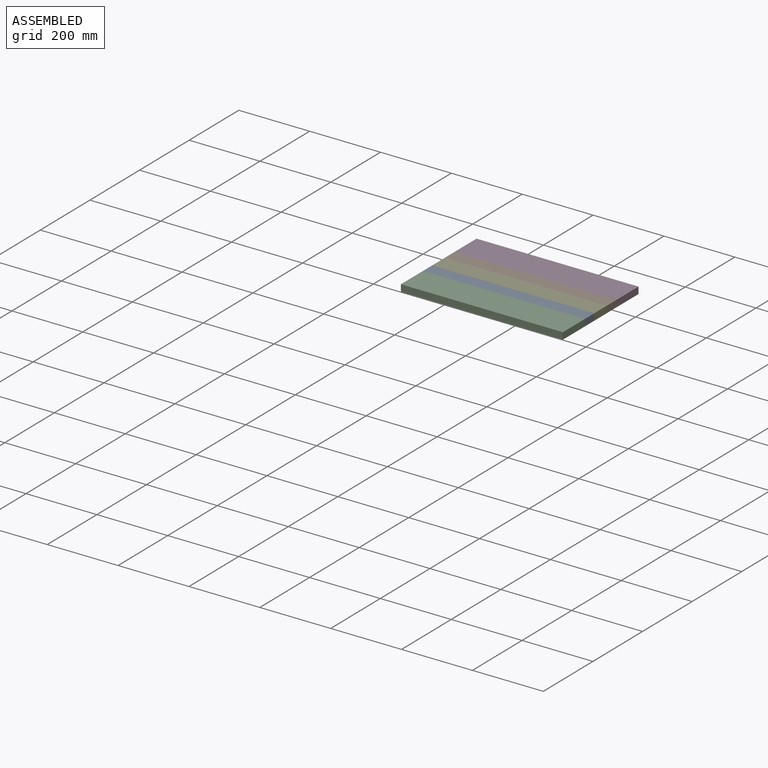
[diagram: assembled view]
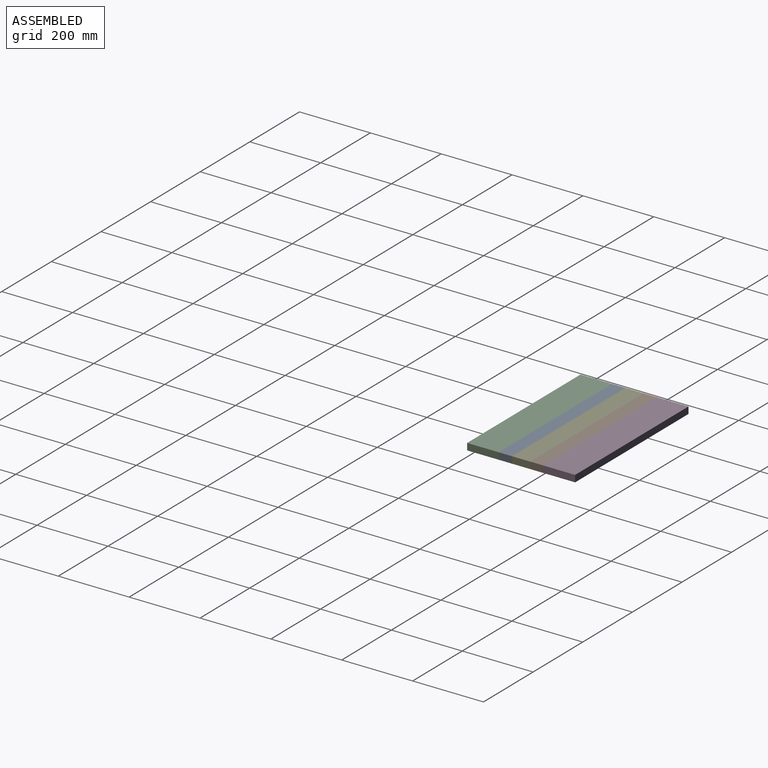
[diagram: assembled view, second angle]
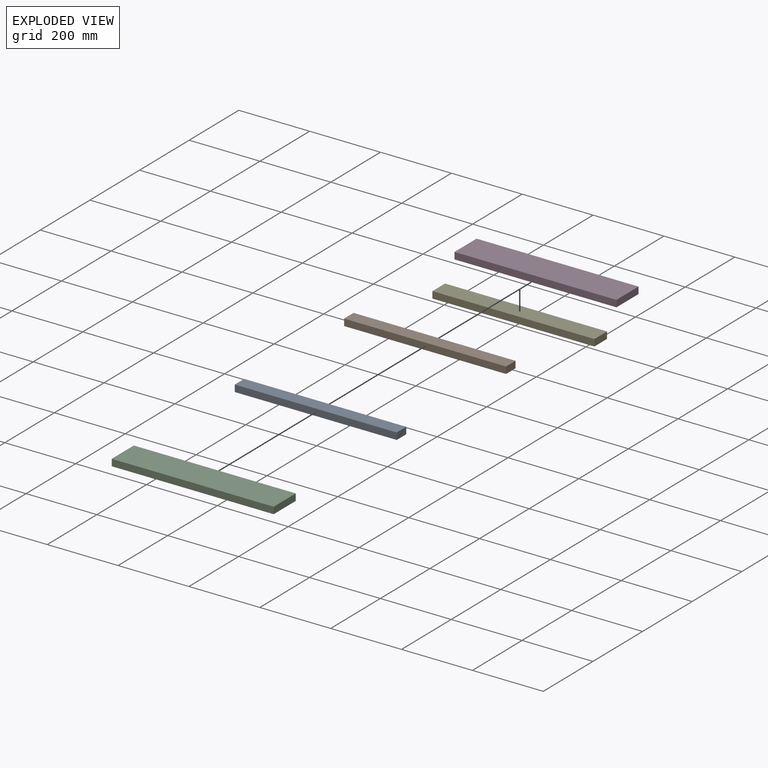
[diagram: exploded view]
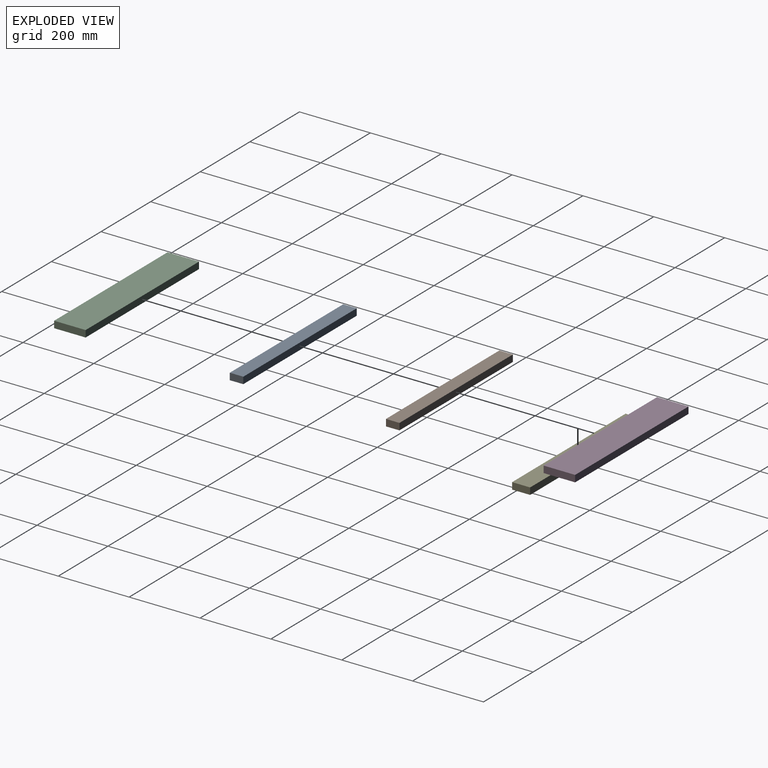
[diagram: exploded view, second angle]
ASSEMBLY  parts=5 mates=4
PART A: 6 faces, bbox 457.2x38.1x19.1 mm
  f0: plane 457.2x19.05mm, normal (0,1,0), area 8709.7mm2, adj f1,f3,f4,f5
  f1: plane 38.1x19.05mm, normal (-1,0,0), area 725.8mm2, adj f0,f2,f4,f5
  f2: plane 457.2x19.05mm, normal (0,-1,0), area 8709.7mm2, adj f1,f3,f4,f5
  f3: plane 38.1x19.05mm, normal (1,0,0), area 725.8mm2, adj f0,f2,f4,f5
  f4: plane 457.2x38.1mm, normal (0,0,1), area 17419.3mm2, adj f0,f1,f2,f3
  f5: plane 457.2x38.1mm, normal (0,0,-1), area 17419.3mm2, adj f0,f1,f2,f3
PART B: same geometry as A
PART C: 6 faces, bbox 457.2x88.9x19.1 mm
  f0: plane 457.2x19.05mm, normal (0,1,0), area 8709.7mm2, adj f1,f3,f4,f5
  f1: plane 88.9x19.05mm, normal (-1,0,0), area 1693.5mm2, adj f0,f2,f4,f5
  f2: plane 457.2x19.05mm, normal (0,-1,0), area 8709.7mm2, adj f1,f3,f4,f5
  f3: plane 88.9x19.05mm, normal (1,0,0), area 1693.5mm2, adj f0,f2,f4,f5
  f4: plane 457.2x88.9mm, normal (0,0,1), area 40645.1mm2, adj f0,f1,f2,f3
  f5: plane 457.2x88.9mm, normal (0,0,-1), area 40645.1mm2, adj f0,f1,f2,f3
PART D: same geometry as C
PART E: 6 faces, bbox 457.2x50.8x19.1 mm
  f0: plane 457.2x19.05mm, normal (0,1,0), area 8709.7mm2, adj f1,f3,f4,f5
  f1: plane 50.8x19.05mm, normal (-1,0,0), area 967.7mm2, adj f0,f2,f4,f5
  f2: plane 457.2x19.05mm, normal (0,-1,0), area 8709.7mm2, adj f1,f3,f4,f5
  f3: plane 50.8x19.05mm, normal (1,0,0), area 967.7mm2, adj f0,f2,f4,f5
  f4: plane 457.2x50.8mm, normal (0,0,1), area 23225.8mm2, adj f0,f1,f2,f3
  f5: plane 457.2x50.8mm, normal (0,0,-1), area 23225.8mm2, adj f0,f1,f2,f3
PLACE A at identity
PLACE B t=(0,88.9,0)mm
PLACE C t=(-23.83,-89.69,0)mm
PLACE D t=(-23.83,126.21,0)mm
PLACE E t=(-10.57,36.99,0)mm
MATE fastened E.f2 <-> A.f0  axis (0,-1,0) through (-232.03,-1.65,19.05)mm
MATE fastened C.f0 <-> A.f2  axis (0,1,0) through (-232.03,-39.75,19.05)mm
MATE fastened B.f2 <-> E.f0  axis (0,-1,0) through (-232.03,49.15,19.05)mm
MATE fastened B.f0 <-> D.f2  axis (0,1,0) through (-232.03,87.25,19.05)mm
